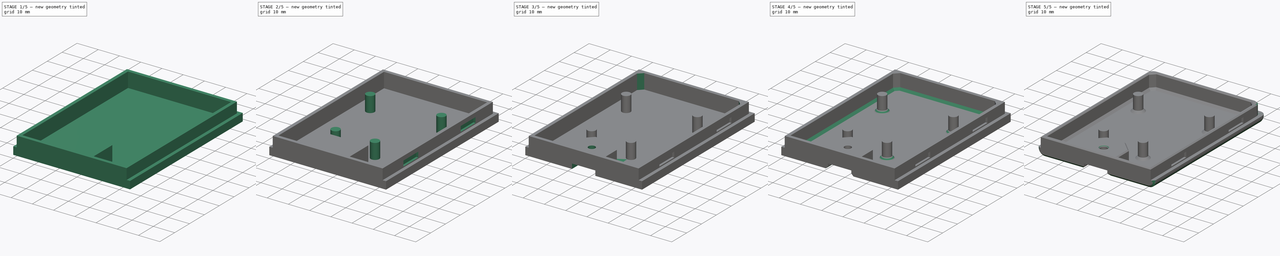
[diagram: build sequence overview — one tinted view per stage of 5, left to right]
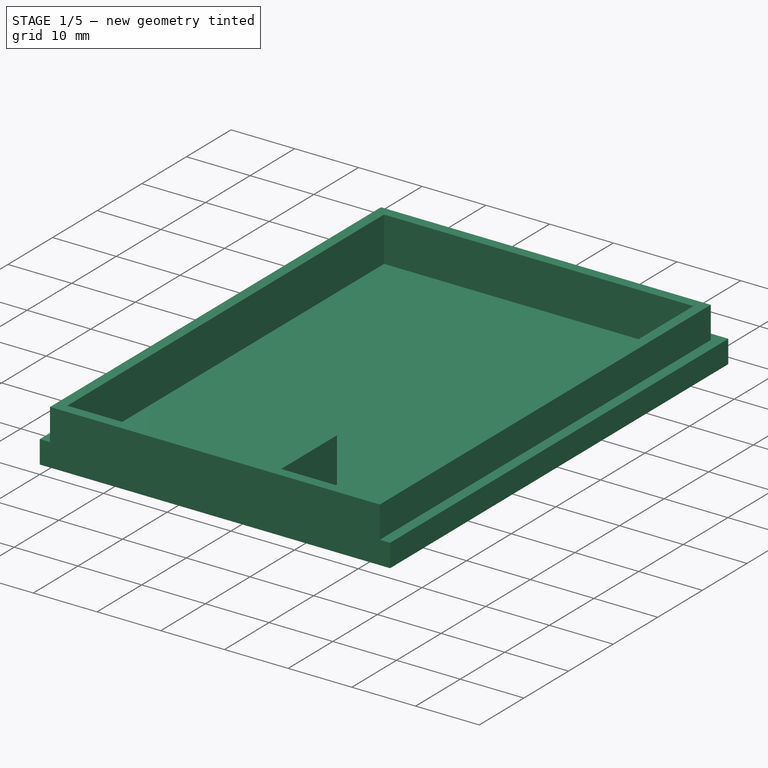
[diagram: stage 1 of 5 — iso view after this stage's code; geometry added in this stage tinted green]
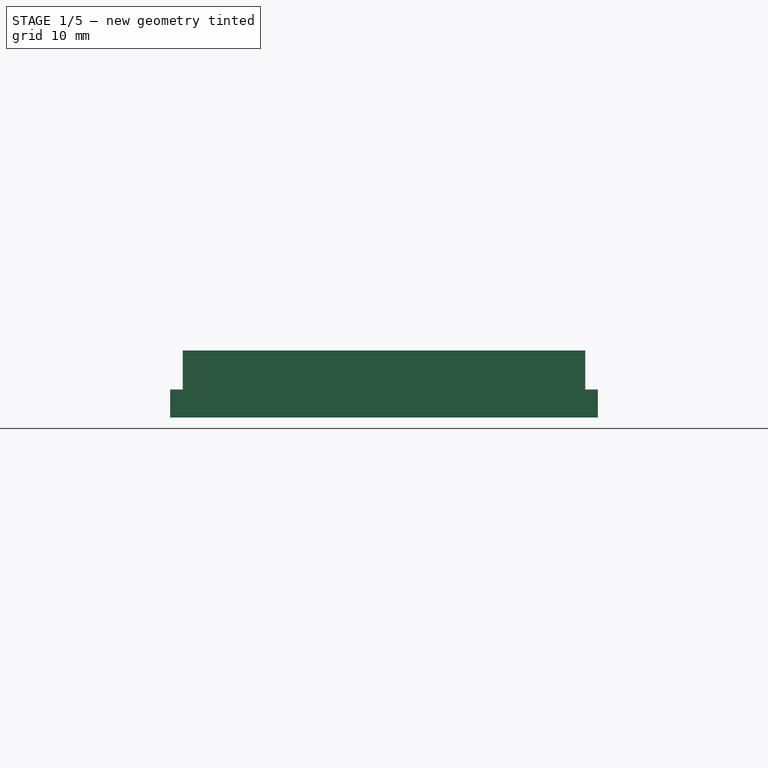
[diagram: stage 1 of 5 — front view after this stage's code; geometry added in this stage tinted green]
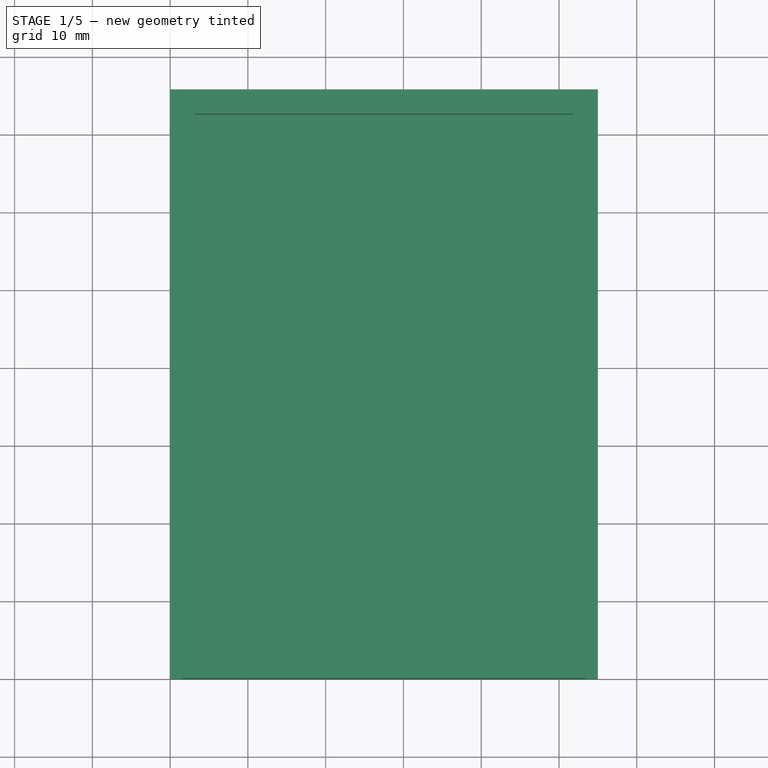
[diagram: stage 1 of 5 — top view after this stage's code; geometry added in this stage tinted green]
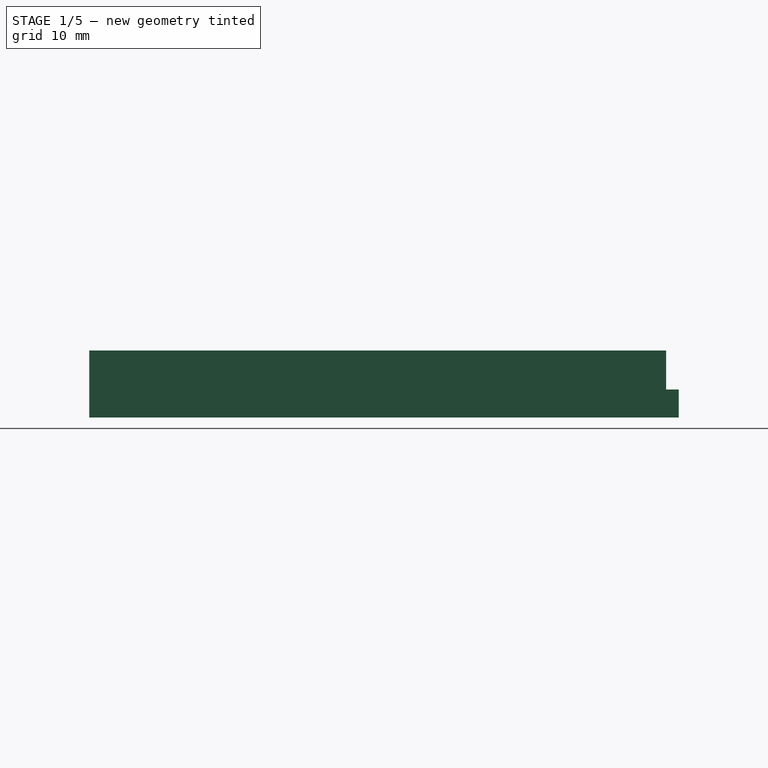
[diagram: stage 1 of 5 — right view after this stage's code; geometry added in this stage tinted green]
FCSTD DOCUMENT  (FreeCAD 0.16R)
Label: enclosure_back_fillets
License: All rights reserved
LicenseURL: http://en.wikipedia.org/wiki/All_rights_reserved
objects: Sketcher::SketchObject×8, PartDesign::Chamfer×7, PartDesign::Pocket×5, PartDesign::Pad×3, PartDesign::Fillet×1, App::DocumentObjectGroup×1
note: 32 computed .brp shape members not serialized (recipe doc carries the construction recipe); baked Part::Feature solids carry a one-line shape summary decoded from their .brp

FEATURE [Sketcher::SketchObject] Sketch
  sketch-geometry (4):
    g0: LineSegment StartX=0 StartY=0 StartZ=0 EndX=55 EndY=0 EndZ=0
    g1: LineSegment StartX=55 StartY=0 StartZ=0 EndX=55 EndY=75.8 EndZ=0
    g2: LineSegment StartX=55 StartY=75.8 StartZ=0 EndX=0 EndY=75.8 EndZ=0
    g3: LineSegment StartX=0 StartY=75.8 StartZ=0 EndX=0 EndY=0 EndZ=0
  constraints (11):
    c: Coincident(g0,g1)
    c: Coincident(g1,g2)
    c: Coincident(g2,g3)
    c: Coincident(g3,g0)
    c: Horizontal(g0)
    c: Horizontal(g2)
    c: Vertical(g1)
    c: Vertical(g3)
    c: Coincident(g0,g-1)
    c: Distance(g0) = 55
    c: Distance(g3) = 75.8
FEATURE [PartDesign::Pad] Pad
  Length = 3.6
  Length2 = 100
  Sketch = -> Sketch
  Type = 0
FEATURE [Sketcher::SketchObject] Sketch001
  ExternalGeometry = -> [Pad]
  Placement = pos=(0,0,3.6) rot=(0,0,1;0rad)
  Support = -> Pad [Face6]
  sketch-geometry (4):
    g0: LineSegment StartX=1.62 StartY=0 StartZ=0 EndX=53.38 EndY=0 EndZ=0
    g1: LineSegment StartX=53.38 StartY=0 StartZ=0 EndX=53.38 EndY=74.18 EndZ=0
    g2: LineSegment StartX=53.38 StartY=74.18 StartZ=0 EndX=1.62 EndY=74.18 EndZ=0
    g3: LineSegment StartX=1.62 StartY=74.18 StartZ=0 EndX=1.62 EndY=0 EndZ=0
  constraints (12):
    c: Coincident(g0,g1)
    c: Coincident(g1,g2)
    c: Coincident(g2,g3)
    c: Coincident(g3,g0)
    c: Horizontal(g0)
    c: Horizontal(g2)
    c: Vertical(g1)
    c: Vertical(g3)
    c: PointOnObject(g0,g-6)
    c: DistanceX(g-5,g2) = 1.62
    c: DistanceX(g1,g-4) = 1.62
    c: DistanceY(g2,g-5) = 1.62
FEATURE [PartDesign::Pad] Pad001
  Length = 5
  Length2 = 100
  Sketch = -> Sketch001
  Type = 0
FEATURE [Sketcher::SketchObject] Sketch002
  ExternalGeometry = -> [Pad001]
  Placement = pos=(0,0,8.6) rot=(0,0,1;0rad)
  Support = -> Pad001 [Face11]
  sketch-geometry (8):
    g0: LineSegment StartX=18.22 StartY=1.6 StartZ=0 EndX=3.22 EndY=1.6 EndZ=0
    g1: LineSegment StartX=3.22 StartY=1.6 StartZ=0 EndX=3.22 EndY=72.58 EndZ=0
    g2: LineSegment StartX=3.22 StartY=72.58 StartZ=0 EndX=51.78 EndY=72.58 EndZ=0
    g3: LineSegment StartX=51.78 StartY=72.58 StartZ=0 EndX=51.78 EndY=1.6 EndZ=0
    g4: LineSegment StartX=51.78 StartY=1.6 StartZ=0 EndX=36.78 EndY=1.6 EndZ=0
    g5: LineSegment StartX=36.78 StartY=1.6 StartZ=0 EndX=36.78 EndY=14.1 EndZ=0
    g6: LineSegment StartX=36.78 StartY=14.1 StartZ=0 EndX=18.22 EndY=14.1 EndZ=0
    g7: LineSegment StartX=18.22 StartY=14.1 StartZ=0 EndX=18.22 EndY=1.6 EndZ=0
  constraints (24):
    c: Horizontal(g0)
    c: Coincident(g0,g1)
    c: Vertical(g1)
    c: Coincident(g1,g2)
    c: Horizontal(g2)
    c: Coincident(g2,g3)
    c: Vertical(g3)
    c: Coincident(g3,g4)
    c: Horizontal(g4)
    c: Coincident(g4,g5)
    c: Vertical(g5)
    c: Coincident(g5,g6)
    c: Horizontal(g6)
    c: Coincident(g6,g7)
    c: Coincident(g7,g0)
    c: Vertical(g7)
    c: DistanceY(g-1,g0) = 1.6
    c: DistanceY(g-1,g3) = 1.6
    c: DistanceY(g1,g-5) = 1.6
    c: DistanceX(g-5,g1) = 1.6
    c: DistanceX(g2,g-5) = 1.6
    c: Distance(g0) = 15
    c: Distance(g4) = 15
    c: Distance(g7) = 12.5
FEATURE [PartDesign::Pocket] Pocket
  Length = 7
  Sketch = -> Sketch002
  Type = 0
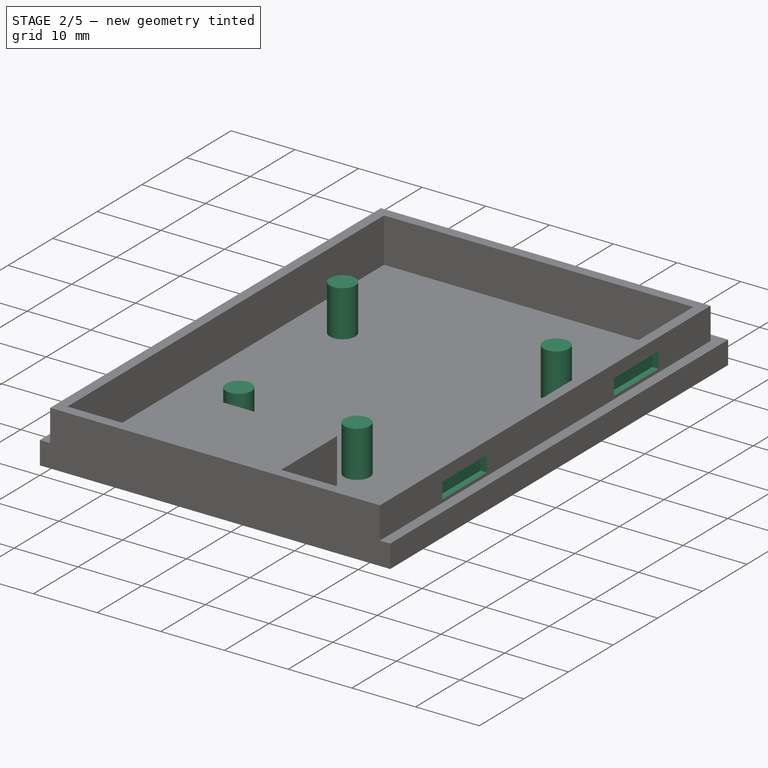
[diagram: stage 2 of 5 — iso view after this stage's code; geometry added in this stage tinted green]
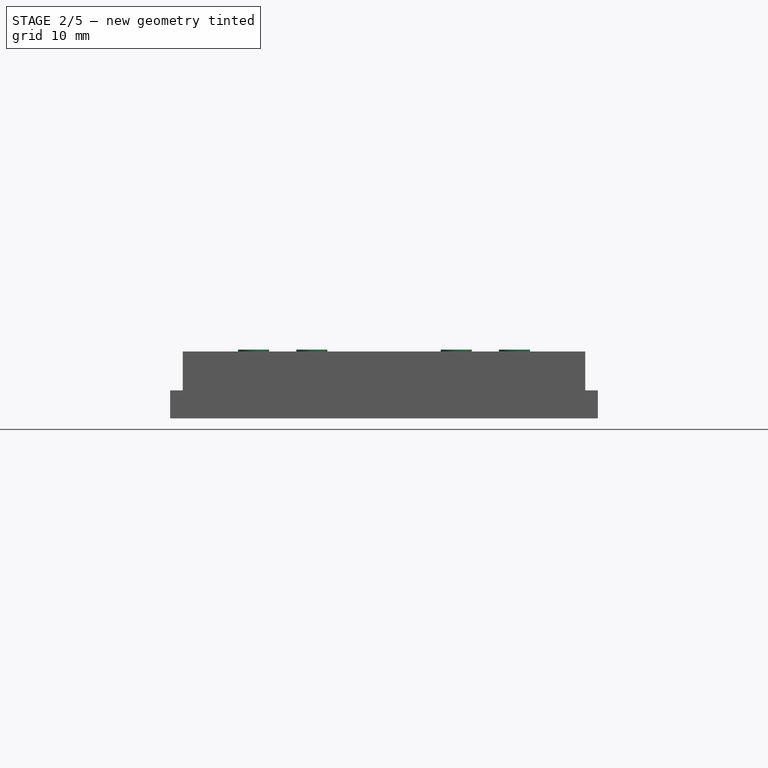
[diagram: stage 2 of 5 — front view after this stage's code; geometry added in this stage tinted green]
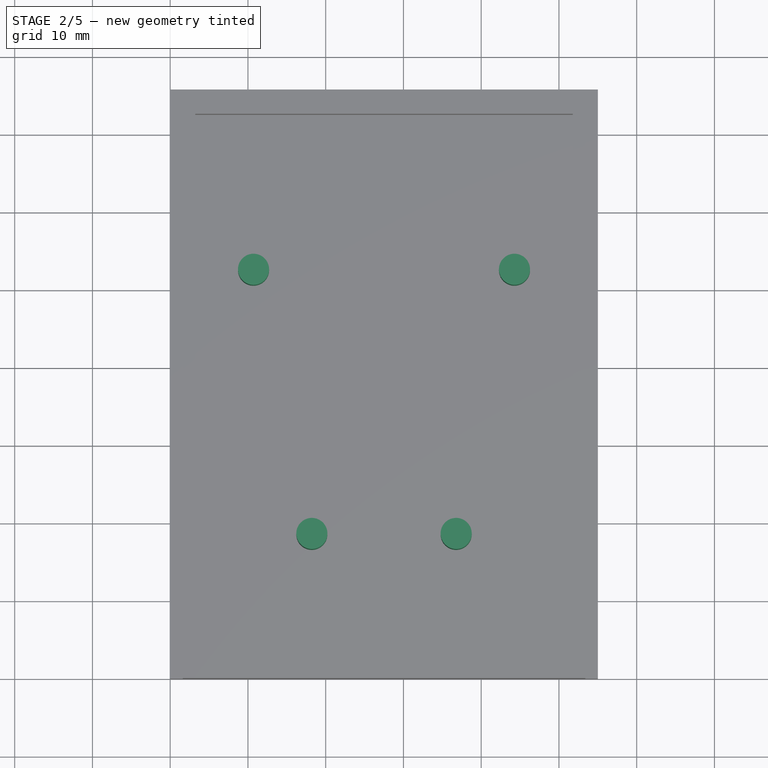
[diagram: stage 2 of 5 — top view after this stage's code; geometry added in this stage tinted green]
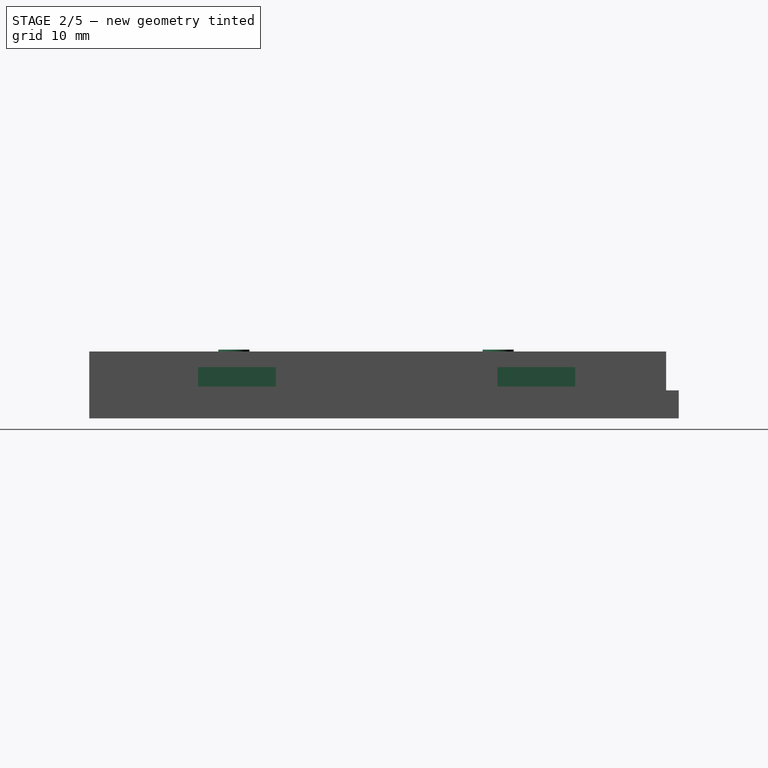
[diagram: stage 2 of 5 — right view after this stage's code; geometry added in this stage tinted green]
FEATURE [Sketcher::SketchObject] Sketch003
  ExternalGeometry = -> [Pocket]
  Placement = pos=(0,0,1.6) rot=(0,0,1;0rad)
  Support = -> Pocket [Face20]
  sketch-geometry (4):
    g0: Circle CenterX=10.72 CenterY=52.58 CenterZ=0 NormalX=0 NormalY=0 NormalZ=1 Radius=2
    g1: Circle CenterX=44.28 CenterY=52.58 CenterZ=0 NormalX=0 NormalY=0 NormalZ=1 Radius=2
    g2: Circle CenterX=18.22 CenterY=18.6 CenterZ=0 NormalX=0 NormalY=0 NormalZ=1 Radius=2
    g3: Circle CenterX=36.78 CenterY=18.6 CenterZ=0 NormalX=0 NormalY=0 NormalZ=1 Radius=2
  constraints (12):
    c: Radius(g2) = 2
    c: Equal(g2,g0)
    c: Equal(g2,g1)
    c: Equal(g2,g3)
    c: DistanceY(g-6,g2) = 17
    c: DistanceY(g-7,g3) = 17
    c: DistanceX(g-6,g2) = 15
    c: DistanceX(g3,g-7) = 15
    c: DistanceX(g-6,g0) = 7.5
    c: DistanceX(g1,g-7) = 7.5
    c: DistanceY(g0,g-6) = 20
    c: DistanceY(g1,g-7) = 20
FEATURE [PartDesign::Pad] Pad002
  Length = 7.25
  Length2 = 100
  Sketch = -> Sketch003
  Type = 0
FEATURE [Sketcher::SketchObject] Sketch004
  ExternalGeometry = -> [Pad002]
  Placement = pos=(53.38,0,0) rot=(0.57735,0.57735,0.57735;2.0944rad)
  Support = -> Pad002 [Face8]
  sketch-geometry (8):
    g0: LineSegment StartX=14 StartY=6.6 StartZ=0 EndX=24 EndY=6.6 EndZ=0
    g1: LineSegment StartX=24 StartY=6.6 StartZ=0 EndX=24 EndY=4.1 EndZ=0
    g2: LineSegment StartX=24 StartY=4.1 StartZ=0 EndX=14 EndY=4.1 EndZ=0
    g3: LineSegment StartX=14 StartY=4.1 StartZ=0 EndX=14 EndY=6.6 EndZ=0
    g4: LineSegment StartX=52.5 StartY=6.6 StartZ=0 EndX=62.5 EndY=6.6 EndZ=0
    g5: LineSegment StartX=62.5 StartY=6.6 StartZ=0 EndX=62.5 EndY=4.1 EndZ=0
    g6: LineSegment StartX=62.5 StartY=4.1 StartZ=0 EndX=52.5 EndY=4.1 EndZ=0
    g7: LineSegment StartX=52.5 StartY=4.1 StartZ=0 EndX=52.5 EndY=6.6 EndZ=0
  constraints (24):
    c: Coincident(g0,g1)
    c: Coincident(g1,g2)
    c: Coincident(g2,g3)
    c: Coincident(g3,g0)
    c: Horizontal(g0)
    c: Horizontal(g2)
    c: Vertical(g1)
    c: Vertical(g3)
    c: Coincident(g4,g5)
    c: Coincident(g5,g6)
    c: Coincident(g6,g7)
    c: Coincident(g7,g4)
    c: Horizontal(g4)
    c: Horizontal(g6)
    c: Vertical(g5)
    c: Vertical(g7)
    c: Equal(g1,g7)
    c: Equal(g0,g4)
    c: DistanceX(g-1,g0) = 14
    c: Distance(g0) = 10
    c: DistanceX(g0,g4) = 28.5
    c: DistanceY(g0,g-4) = 2
    c: Distance(g3) = 2.5
    c: DistanceY(g4,g-5) = 2
FEATURE [PartDesign::Pocket] Pocket001
  Length = 1
  Sketch = -> Sketch004
  Type = 0
FEATURE [Sketcher::SketchObject] Sketch005
  ExternalGeometry = -> [Pocket001]
  Placement = pos=(1.62,0,0) rot=(0.57735,-0.57735,-0.57735;2.0944rad)
  Support = -> Pocket001 [Face10]
  sketch-geometry (8):
    g0: LineSegment StartX=-62.5 StartY=6.6 StartZ=0 EndX=-52.5 EndY=6.6 EndZ=0
    g1: LineSegment StartX=-52.5 StartY=6.6 StartZ=0 EndX=-52.5 EndY=4.1 EndZ=0
    g2: LineSegment StartX=-52.5 StartY=4.1 StartZ=0 EndX=-62.5 EndY=4.1 EndZ=0
    g3: LineSegment StartX=-62.5 StartY=4.1 StartZ=0 EndX=-62.5 EndY=6.6 EndZ=0
    g4: LineSegment StartX=-24 StartY=6.6 StartZ=0 EndX=-14 EndY=6.6 EndZ=0
    g5: LineSegment StartX=-14 StartY=6.6 StartZ=0 EndX=-14 EndY=4.1 EndZ=0
    g6: LineSegment StartX=-14 StartY=4.1 StartZ=0 EndX=-24 EndY=4.1 EndZ=0
    g7: LineSegment StartX=-24 StartY=4.1 StartZ=0 EndX=-24 EndY=6.6 EndZ=0
  constraints (24):
    c: Coincident(g0,g1)
    c: Coincident(g1,g2)
    c: Coincident(g2,g3)
    c: Coincident(g3,g0)
    c: Horizontal(g0)
    c: Horizontal(g2)
    c: Vertical(g1)
    c: Vertical(g3)
    c: Coincident(g4,g5)
    c: Coincident(g5,g6)
    c: Coincident(g6,g7)
    c: Coincident(g7,g4)
    c: Horizontal(g4)
    c: Horizontal(g6)
    c: Vertical(g5)
    c: Vertical(g7)
    c: Equal(g7,g1)
    c: Equal(g0,g4)
    c: Distance(g5) = 2.5
    c: DistanceY(g4,g-5) = 2
    c: DistanceY(g0,g-4) = 2
    c: DistanceX(g4,g-5) = 14
    c: Distance(g4) = 10
    c: DistanceX(g0,g4) = 28.5
FEATURE [PartDesign::Pocket] Pocket002
  Length = 1
  Sketch = -> Sketch005
  Type = 0
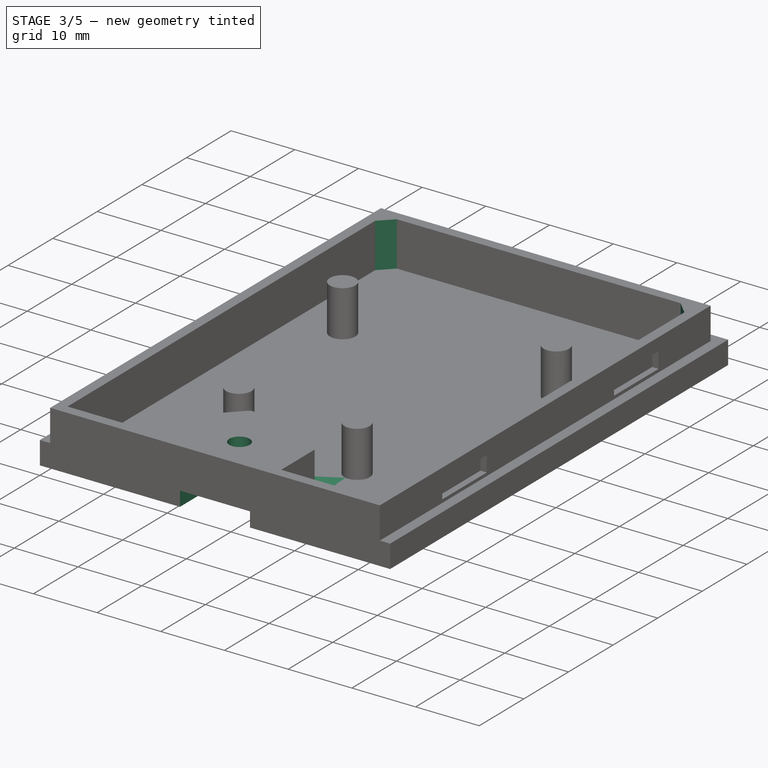
[diagram: stage 3 of 5 — iso view after this stage's code; geometry added in this stage tinted green]
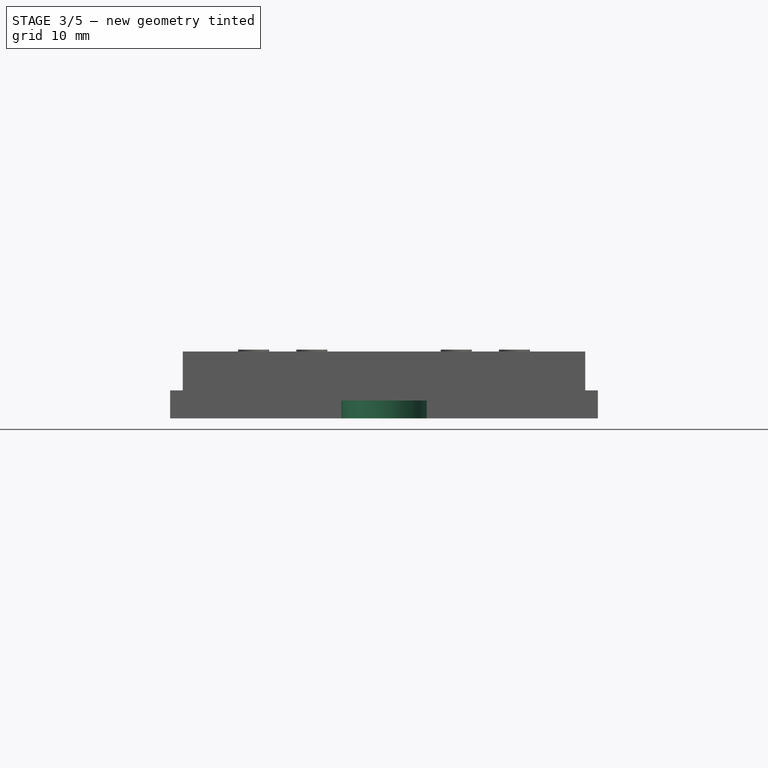
[diagram: stage 3 of 5 — front view after this stage's code; geometry added in this stage tinted green]
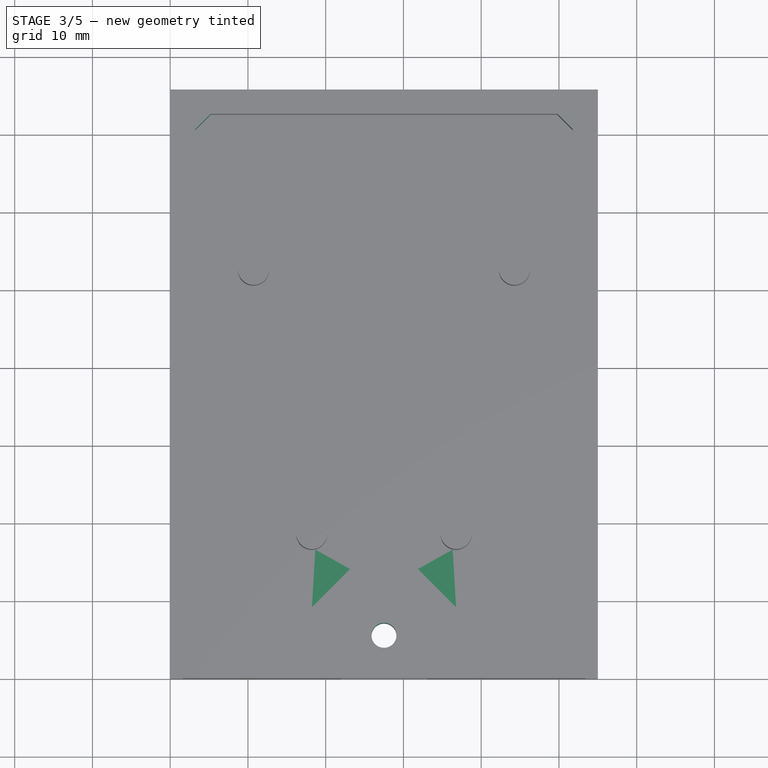
[diagram: stage 3 of 5 — top view after this stage's code; geometry added in this stage tinted green]
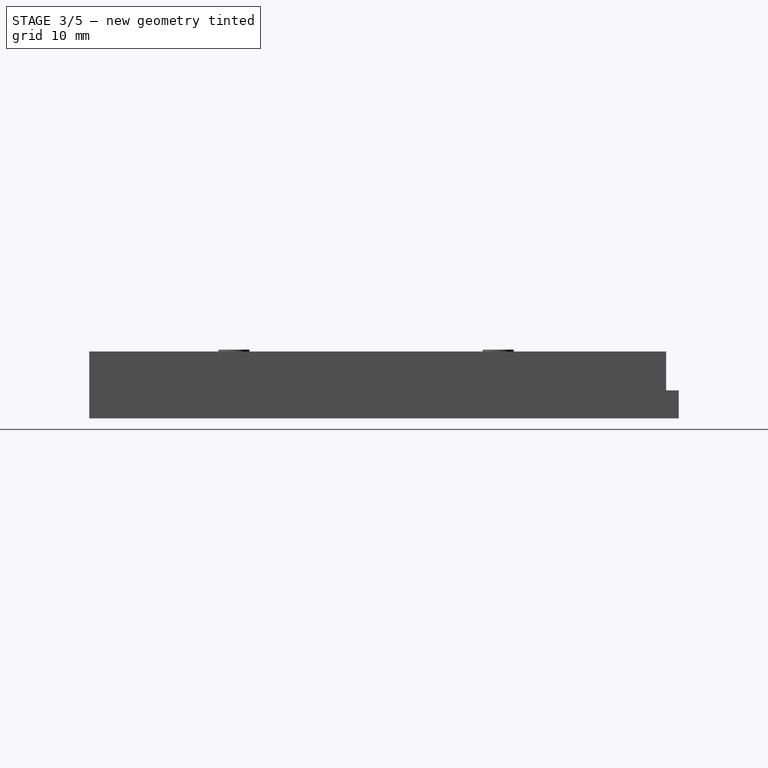
[diagram: stage 3 of 5 — right view after this stage's code; geometry added in this stage tinted green]
FEATURE [Sketcher::SketchObject] Sketch006
  ExternalGeometry = -> [Pocket002]
  Placement = pos=(0,0,0) rot=(1,0,0;3.14159rad)
  Support = -> Pocket002 [Face4]
  sketch-geometry (6):
    g0: LineSegment StartX=22 StartY=0 StartZ=0 EndX=33 EndY=0 EndZ=0
    g1: LineSegment StartX=33 StartY=0 StartZ=0 EndX=33 EndY=-5.5 EndZ=0
    g2: LineSegment StartX=27.5 StartY=-11 StartZ=0 EndX=27.5 EndY=-11 EndZ=0
    g3: LineSegment StartX=22 StartY=-5.5 StartZ=0 EndX=22 EndY=0 EndZ=0
    g4: ArcOfCircle CenterX=27.5 CenterY=-5.5 CenterZ=0 NormalX=0 NormalY=0 NormalZ=1 Radius=5.5 StartAngle=3.14159 EndAngle=4.71239
    g5: ArcOfCircle CenterX=27.5 CenterY=-5.5 CenterZ=0 NormalX=0 NormalY=0 NormalZ=1 Radius=5.5 StartAngle=4.71239 EndAngle=6.28319
  constraints (16):
    c: Coincident(g0,g1)
    c: Coincident(g3,g0)
    c: Horizontal(g0)
    c: Horizontal(g2)
    c: Vertical(g1)
    c: Vertical(g3)
    c: PointOnObject(g0,g-3)
    c: Tangent(g3,g4) = 1.5708
    c: Tangent(g2,g4) = 1.5708
    c: Tangent(g2,g5) = 1.5708
    c: Tangent(g1,g5) = 1.5708
    c: DistanceX(g-1,g0) = 22
    c: DistanceX(g0,g-3) = 22
    c: DistanceY(g2,g-1) = 11
    c: Radius(g4) = 5.5
    c: Equal(g4,g5)
FEATURE [PartDesign::Pocket] Pocket003
  Length = 2.3
  Sketch = -> Sketch006
  Type = 0
FEATURE [Sketcher::SketchObject] Sketch007
  ExternalGeometry = -> [Pocket003]
  Placement = pos=(0,0,2.3) rot=(1,0,0;3.14159rad)
  Support = -> Pocket003 [Face8]
  sketch-geometry (1):
    g0: Circle CenterX=27.5 CenterY=-5.5 CenterZ=0 NormalX=0 NormalY=0 NormalZ=1 Radius=1.6
  constraints (2):
    c: Coincident(g0,g-3)
    c: Radius(g0) = 1.6
FEATURE [PartDesign::Pocket] Pocket004
  Length = 5
  Sketch = -> Sketch007
  Type = 1
FEATURE [PartDesign::Chamfer] Chamfer
  Base = -> Pocket004 [Edge105,Edge103]
  Size = 5
FEATURE [PartDesign::Chamfer] Chamfer001
  Base = -> Chamfer [Edge34,Edge31]
  Size = 2
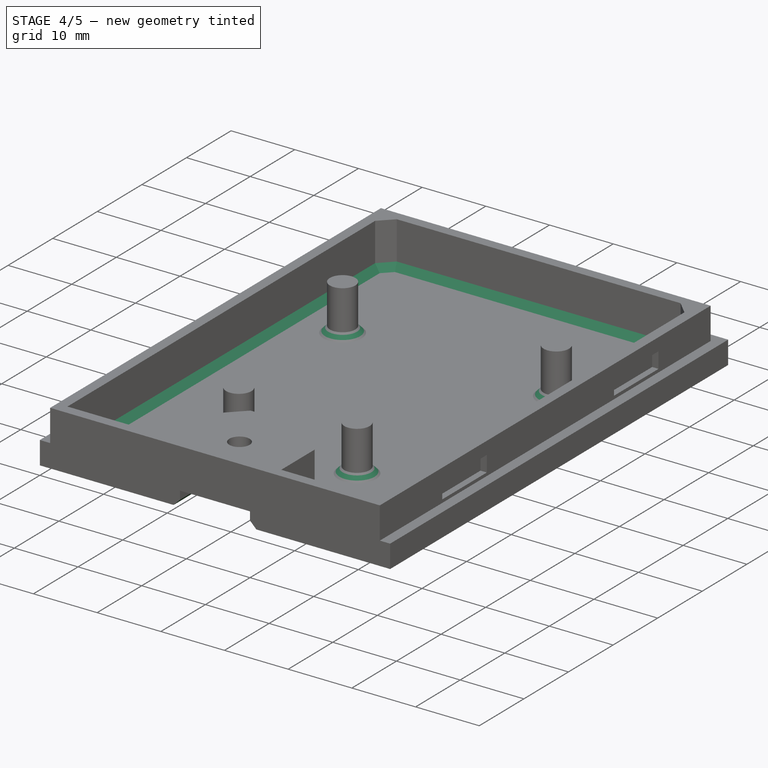
[diagram: stage 4 of 5 — iso view after this stage's code; geometry added in this stage tinted green]
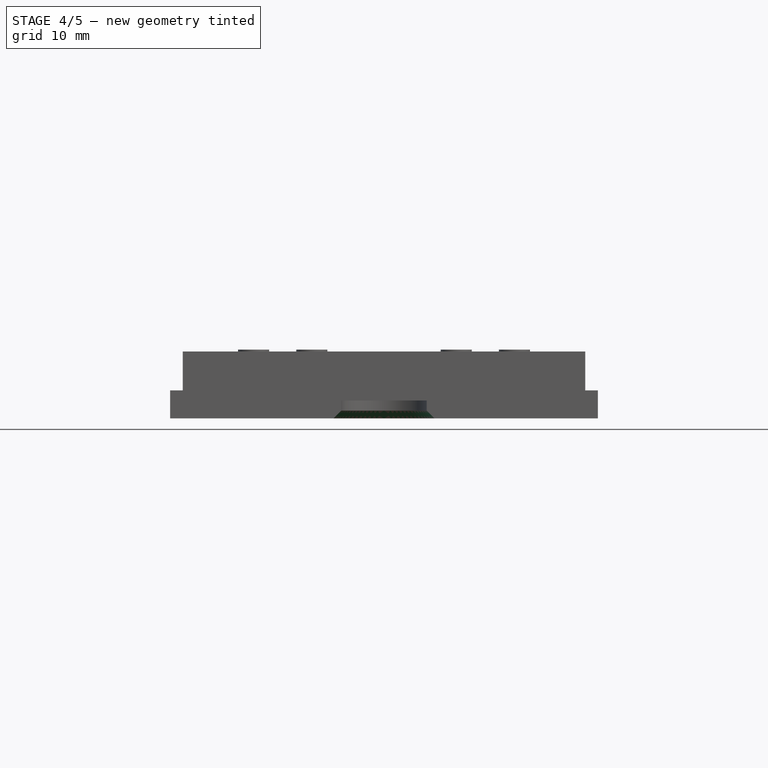
[diagram: stage 4 of 5 — front view after this stage's code; geometry added in this stage tinted green]
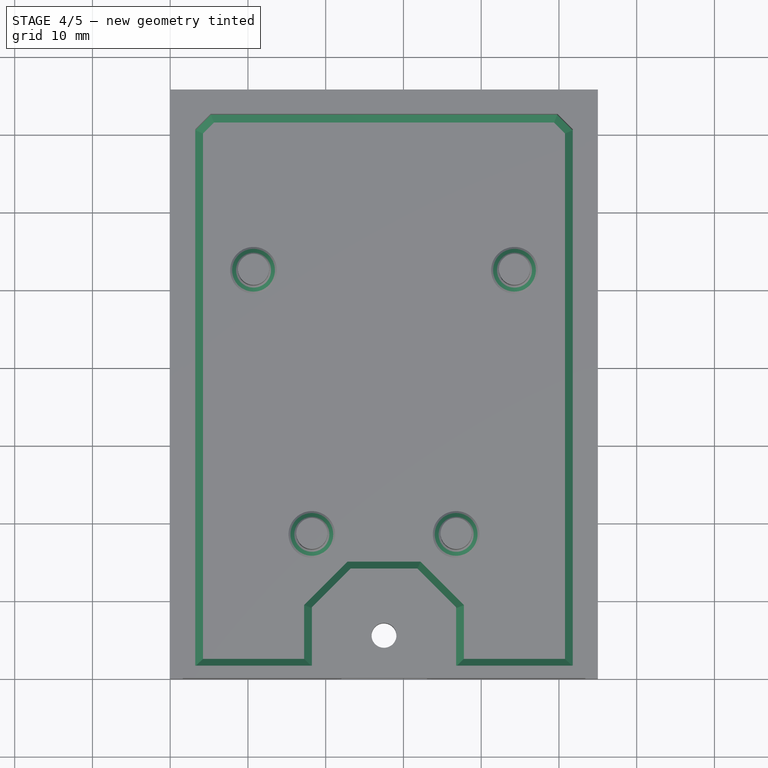
[diagram: stage 4 of 5 — top view after this stage's code; geometry added in this stage tinted green]
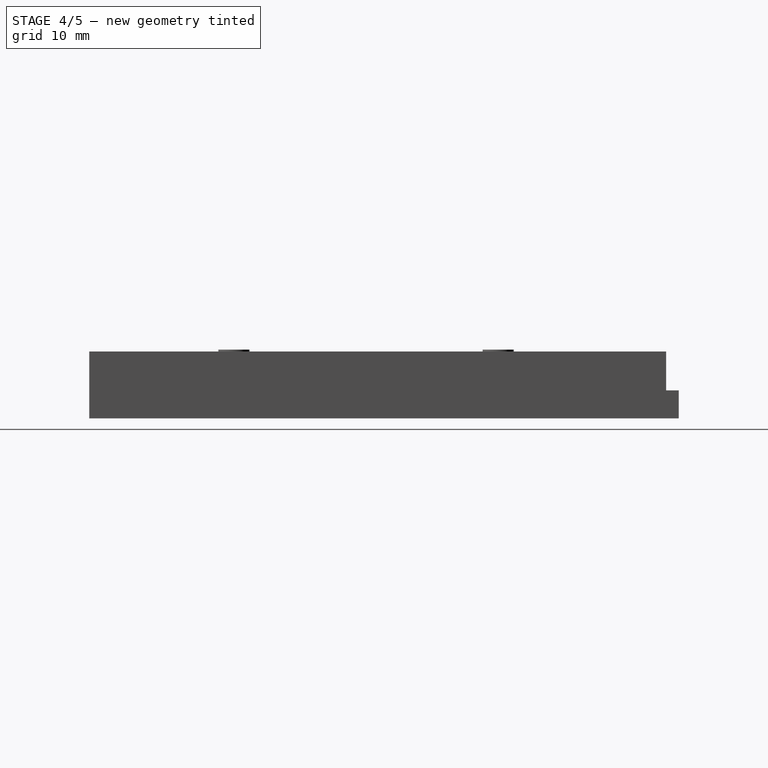
[diagram: stage 4 of 5 — right view after this stage's code; geometry added in this stage tinted green]
FEATURE [PartDesign::Chamfer] Chamfer002
  Base = -> Chamfer001 [Edge34,Edge30,Edge38,Edge26,Edge41,Edge22,Edge40,Edge20,Edge36,Edge23,Edge32,Edge28,Edge68,Edge69,Edge70,Edge71]
  Size = 1
FEATURE [PartDesign::Chamfer] Chamfer003
  Base = -> Chamfer002 [Edge86]
  Size = 1
FEATURE [PartDesign::Chamfer] Chamfer004
  Base = -> Chamfer003 [Edge79,Edge92]
  Size = 1
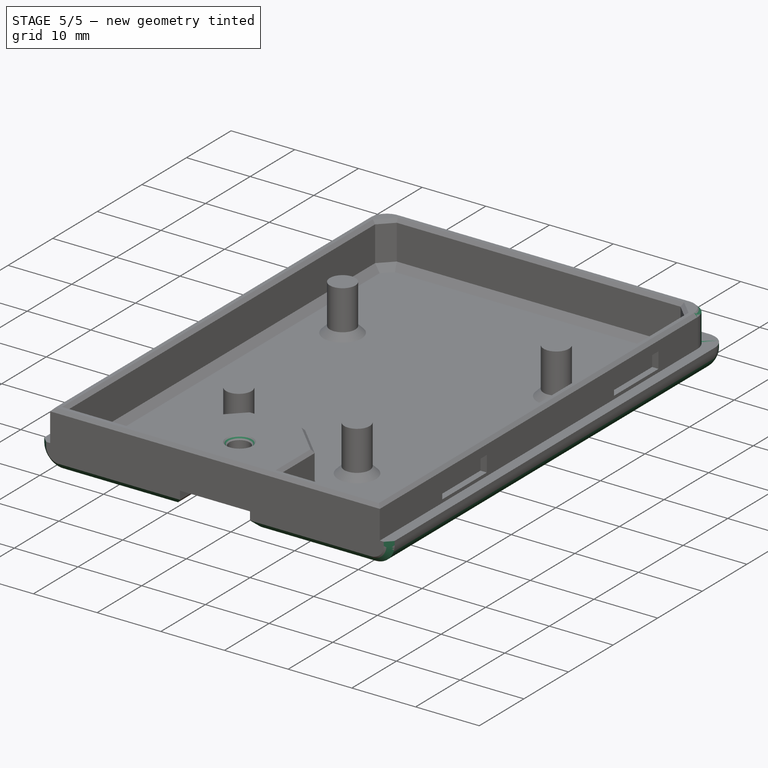
[diagram: stage 5 of 5 — iso view after this stage's code; geometry added in this stage tinted green]
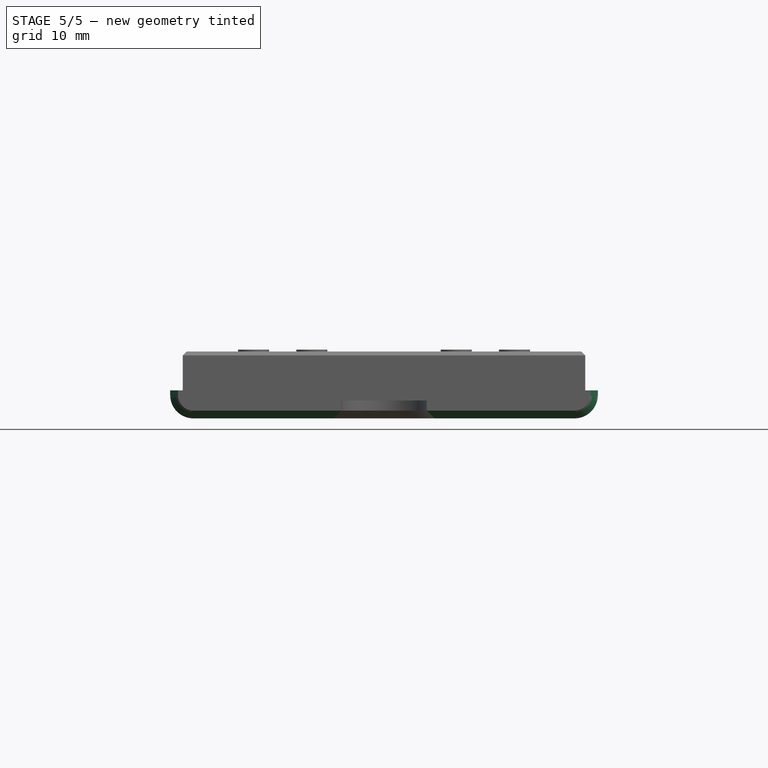
[diagram: stage 5 of 5 — front view after this stage's code; geometry added in this stage tinted green]
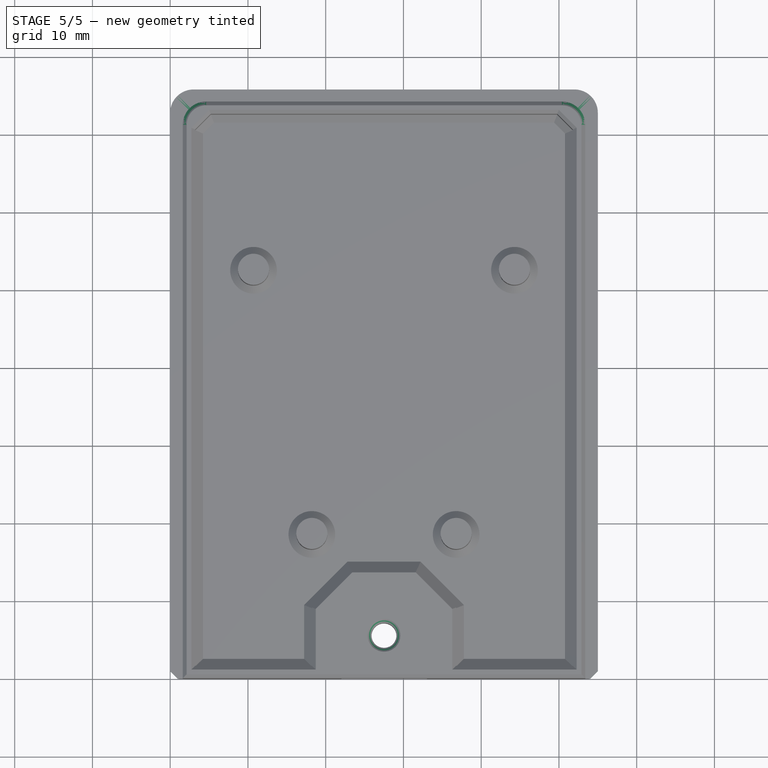
[diagram: stage 5 of 5 — top view after this stage's code; geometry added in this stage tinted green]
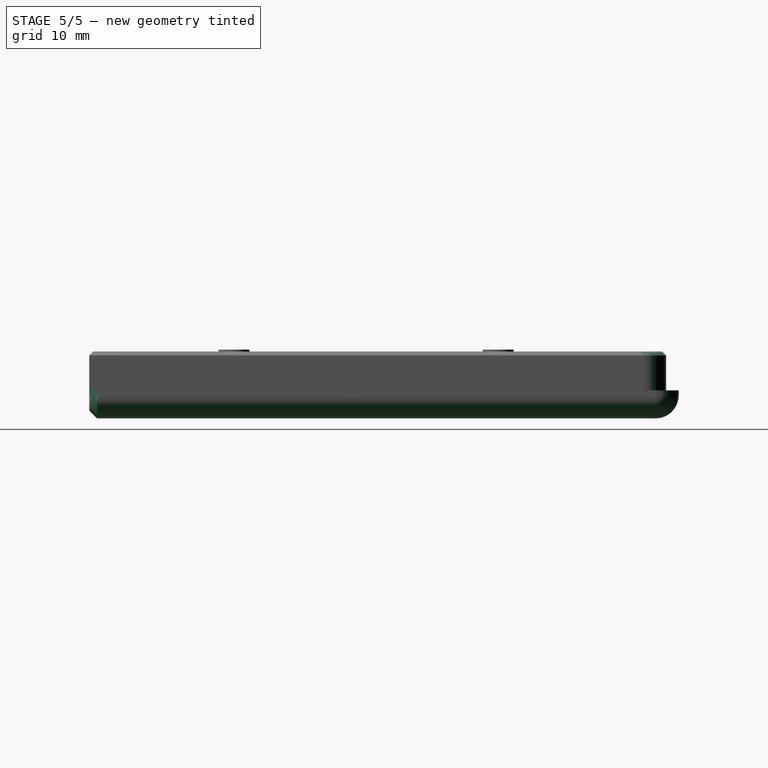
[diagram: stage 5 of 5 — right view after this stage's code; geometry added in this stage tinted green]
FEATURE [PartDesign::Fillet] Fillet
  Base = -> Chamfer004 [Edge66,Edge40,Edge34,Edge32,Edge56,Edge30,Edge51]
  Radius = 3
FEATURE [PartDesign::Chamfer] Chamfer005
  Base = -> Fillet [Edge68,Edge79,Edge46,Edge81,Edge84,Edge83,Edge96,Edge97,Edge98,Edge99,Edge100,Edge101,Edge102,Edge103,Edge104,Edge105,Edge106,Edge107,Edge108]
  Size = 0.5
FEATURE [PartDesign::Chamfer] Chamfer006
  Base = -> Chamfer005 [Edge30,Edge19]
  Size = 1
FEATURE [App::DocumentObjectGroup] Group  label="Back"
  Group = -> [Pad,Pad001,Pocket,Pad002,Pocket001,Pocket002,Pocket003,Pocket004,Chamfer,Chamfer001,Chamfer002,Chamfer003,Chamfer004,Fillet,Chamfer005,Chamfer006]
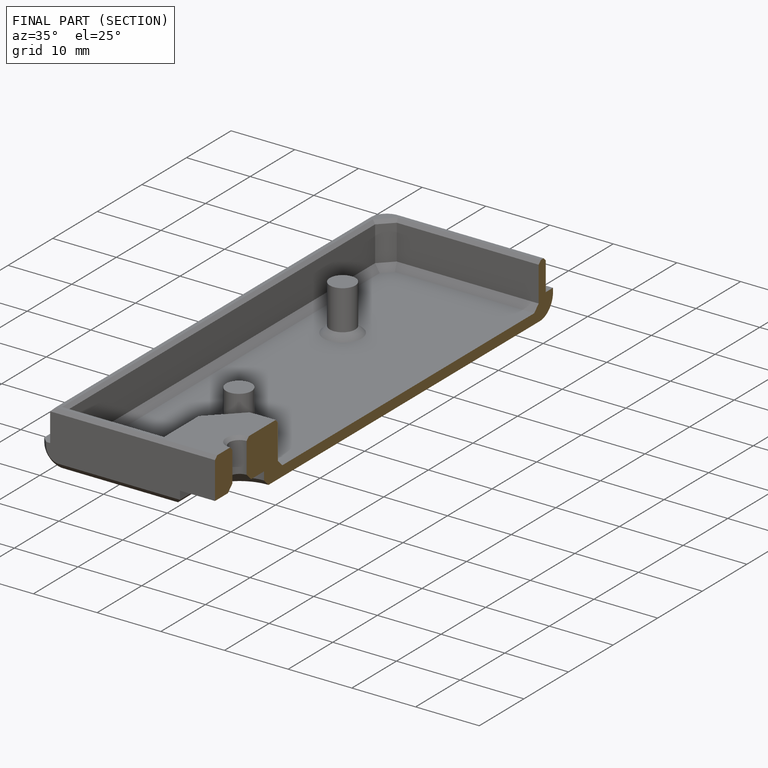
[diagram: finished part — half-section view (interior)]
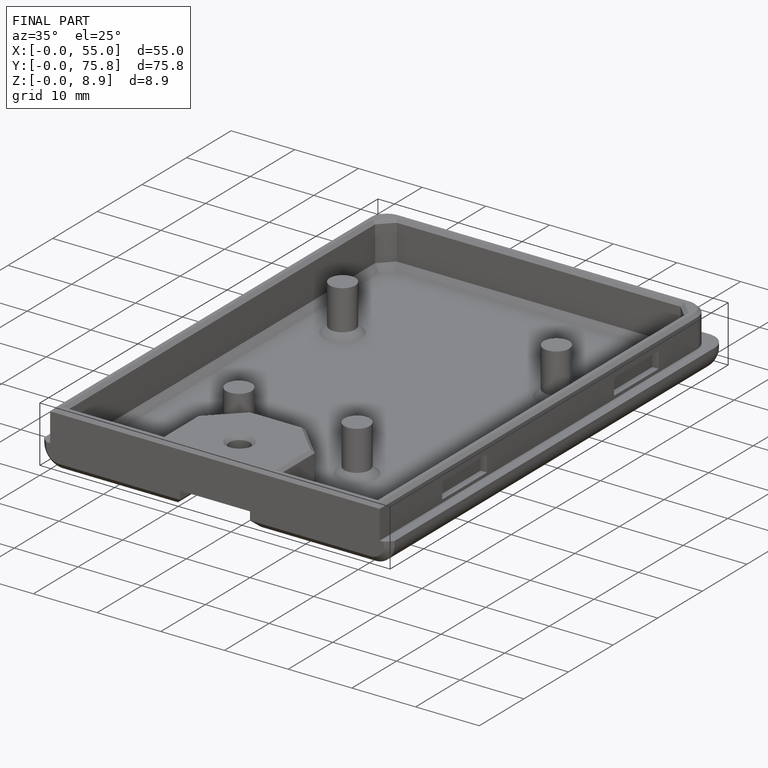
[diagram: finished part — iso view with bounding-box wireframe]
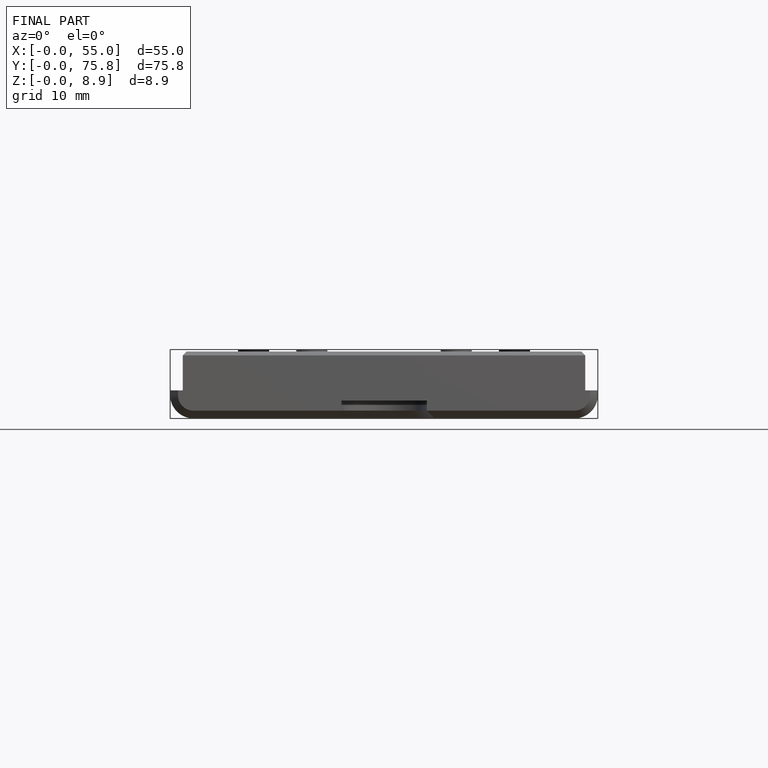
[diagram: finished part — front view with bounding-box wireframe]
